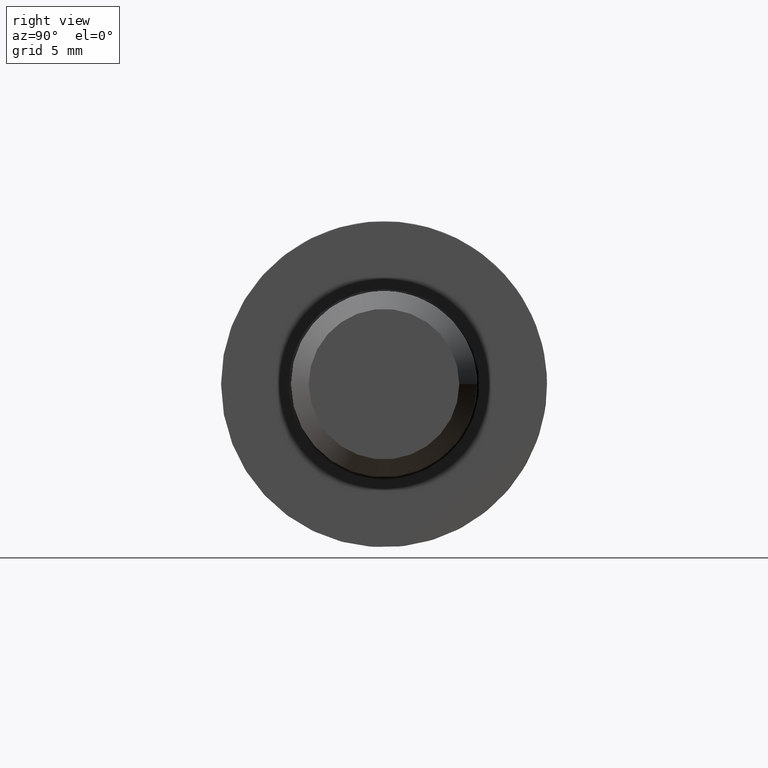
[diagram: clean part render]
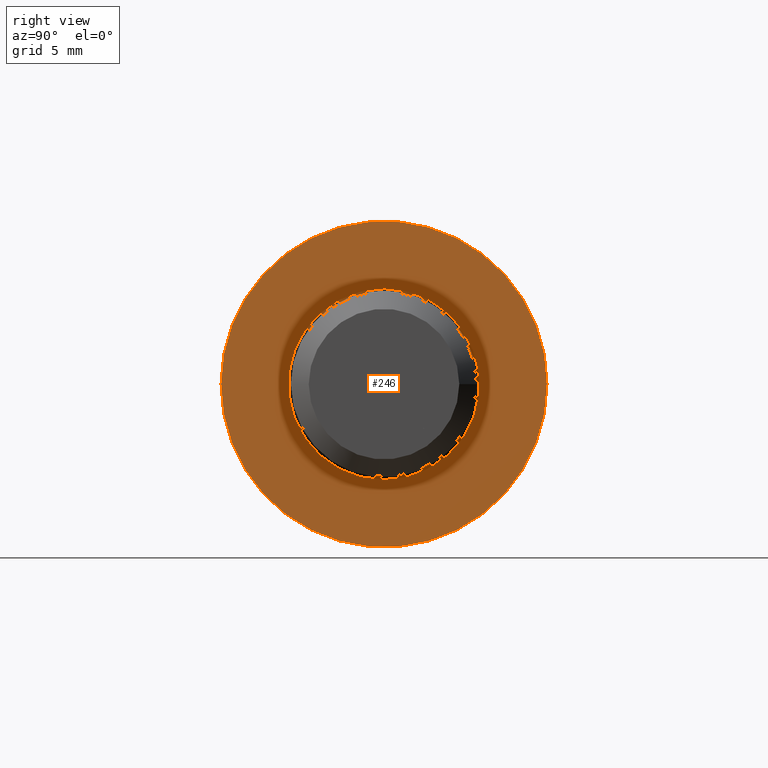
[diagram: same view with one face highlighted and labeled with its STEP entity id]
A machine part, right view. The second image highlights one B-rep face of the part: STEP entity #246.
In plain terms, the highlighted planar face has unit normal (1, 0, 0).
Its self-contained STEP definition (entity closure, byte-faithful):
#25=FACE_BOUND('',#88,.T.);
#27=PLANE('',#290);
#72=FACE_OUTER_BOUND('',#87,.T.);
#87=EDGE_LOOP('',(#184));
#88=EDGE_LOOP('',(#185));
#102=CIRCLE('',#283,4.1);
#108=CIRCLE('',#291,7.);
#114=VERTEX_POINT('',#380);
#119=VERTEX_POINT('',#394);
#138=EDGE_CURVE('',#114,#114,#102,.T.);
#145=EDGE_CURVE('',#119,#119,#108,.T.);
#184=ORIENTED_EDGE('',*,*,#145,.T.);
#185=ORIENTED_EDGE('',*,*,#138,.F.);
#246=ADVANCED_FACE('',(#72,#25),#27,.T.);
#283=AXIS2_PLACEMENT_3D('',#381,#312,#313);
#290=AXIS2_PLACEMENT_3D('',#393,#327,#328);
#291=AXIS2_PLACEMENT_3D('',#395,#329,#330);
#312=DIRECTION('center_axis',(1.,5.98373334115326E-18,0.));
#313=DIRECTION('ref_axis',(5.98373334115326E-18,-1.,1.22464679914735E-16));
#327=DIRECTION('center_axis',(1.,5.98373334115326E-18,0.));
#328=DIRECTION('ref_axis',(0.,0.,-1.));
#329=DIRECTION('center_axis',(1.,5.98373334115326E-18,0.));
#330=DIRECTION('ref_axis',(0.,1.,0.));
#380=CARTESIAN_POINT('',(2.25514051876985E-15,-6.2177985447348E-16,4.1));
#381=CARTESIAN_POINT('Origin',(2.25514051876985E-15,-1.19674666823065E-16,
0.));
#393=CARTESIAN_POINT('Origin',(2.22044604925031E-15,5.5,0.));
#394=CARTESIAN_POINT('',(2.22044604925031E-15,-7.,-8.57252759403147E-16));
#395=CARTESIAN_POINT('Origin',(2.22044604925031E-15,-1.19674666823065E-16,
0.));